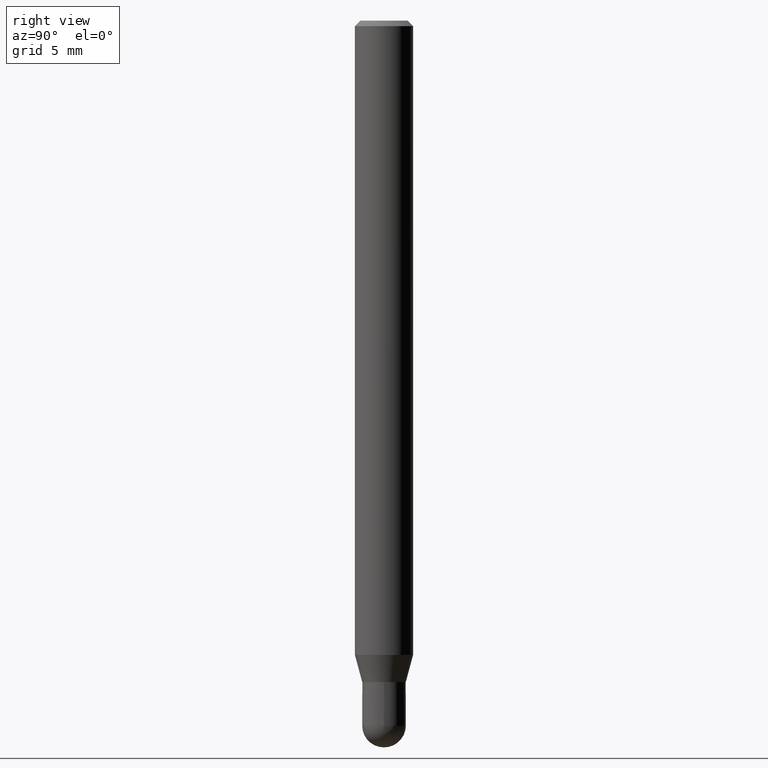
[diagram: clean part render]
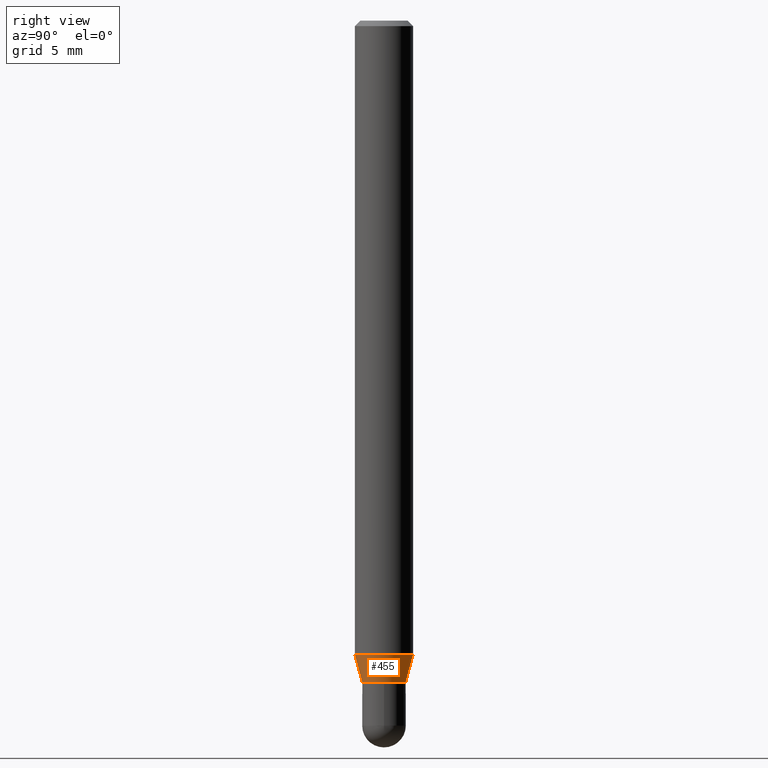
[diagram: same view with one face highlighted and labeled with its STEP entity id]
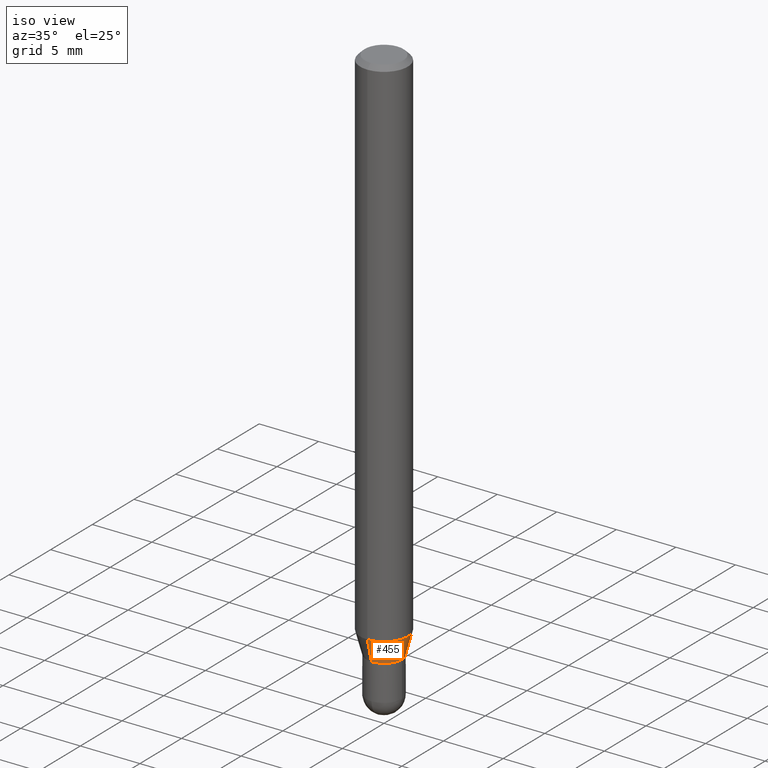
[diagram: same view with one face highlighted and labeled with its STEP entity id]
A machine part, right view. The second image highlights one B-rep face of the part: STEP entity #455.
A second angle (iso view) of the same face is appended — the face is thin or edge-on in the first view.
In plain terms, the highlighted conical surface has half-angle 15 deg.
Its self-contained STEP definition (entity closure, byte-faithful):
#4 = VERTEX_POINT ( 'NONE', #284 ) ;
#31 = AXIS2_PLACEMENT_3D ( 'NONE', #129, #277, #484 ) ;
#51 = CARTESIAN_POINT ( 'NONE',  ( 5.595524044111208086E-16, 0.07874999999999401923, -1.717978599090896230 ) ) ;
#70 = VECTOR ( 'NONE', #271, 39.37007874015748854 ) ;
#129 = CARTESIAN_POINT ( 'NONE',  ( 4.380515383996438847E-29, -6.255764968016230581E-15, -1.791499999999999648 ) ) ;
#137 = EDGE_CURVE ( 'NONE', #322, #505, #236, .T. ) ;
#144 = CIRCLE ( 'NONE', #269, 0.05905000000000020649 ) ;
#147 = CARTESIAN_POINT ( 'NONE',  ( -5.499083108677514374E-16, -0.07875000000000596800, -1.717978599090895564 ) ) ;
#151 = DIRECTION ( 'NONE',  ( -1.807323732225375499E-15, -0.2588190451025246808, 0.9659258262890673130 ) ) ;
#193 = ORIENTED_EDGE ( 'NONE', *, *, #137, .F. ) ;
#194 = DIRECTION ( 'NONE',  ( -2.445166276302785085E-29, 3.491914578853604397E-15, 1.000000000000000000 ) ) ;
#200 = DIRECTION ( 'NONE',  ( -2.445166276302785085E-29, 3.491914578853604397E-15, 1.000000000000000000 ) ) ;
#201 = VERTEX_POINT ( 'NONE', #290 ) ;
#220 = CARTESIAN_POINT ( 'NONE',  ( 4.380515383996438847E-29, -6.255764968016230581E-15, -1.791499999999999648 ) ) ;
#231 = CARTESIAN_POINT ( 'NONE',  ( 4.200743333906961214E-29, -5.999034516323990966E-15, -1.717978599090895786 ) ) ;
#235 = ORIENTED_EDGE ( 'NONE', *, *, #316, .T. ) ;
#236 = CIRCLE ( 'NONE', #429, 0.07875000000000000056 ) ;
#237 = VECTOR ( 'NONE', #151, 39.37007874015748854 ) ;
#259 = EDGE_CURVE ( 'NONE', #4, #505, #428, .T. ) ;
#263 = DIRECTION ( 'NONE',  ( -6.982962677686265922E-15, -1.000000000000000000, 4.626330217890353559E-15 ) ) ;
#269 = AXIS2_PLACEMENT_3D ( 'NONE', #220, #194, #263 ) ;
#271 = DIRECTION ( 'NONE',  ( 1.839019923739646069E-15, 0.2588190451025313976, 0.9659258262890653146 ) ) ;
#277 = DIRECTION ( 'NONE',  ( -2.445166276302785085E-29, 3.491914578853604397E-15, 1.000000000000000000 ) ) ;
#278 = EDGE_CURVE ( 'NONE', #201, #322, #466, .T. ) ;
#284 = CARTESIAN_POINT ( 'NONE',  ( 4.895639449387525347E-16, 0.05904999999999394761, -1.791500000000000092 ) ) ;
#290 = CARTESIAN_POINT ( 'NONE',  ( -4.123439461173316314E-16, -0.05905000000000645843, -1.791499999999999426 ) ) ;
#302 = CARTESIAN_POINT ( 'NONE',  ( 4.195754854663843594E-16, 0.05904999999999394761, -1.791500000000000092 ) ) ;
#316 = EDGE_CURVE ( 'NONE', #201, #4, #144, .T. ) ;
#322 = VERTEX_POINT ( 'NONE', #147 ) ;
#332 = CONICAL_SURFACE ( 'NONE', #31, 0.05905000000000020649, 0.2617993877991570129 ) ;
#356 = DIRECTION ( 'NONE',  ( -6.982962677686264344E-15, -1.000000000000000000, 3.469013325287953293E-15 ) ) ;
#362 = FACE_OUTER_BOUND ( 'NONE', #395, .T. ) ;
#395 = EDGE_LOOP ( 'NONE', ( #235, #485, #193, #497 ) ) ;
#428 = LINE ( 'NONE', #302, #70 ) ;
#429 = AXIS2_PLACEMENT_3D ( 'NONE', #231, #200, #356 ) ;
#455 = ADVANCED_FACE ( 'NONE', ( #362 ), #332, .T. ) ;
#466 = LINE ( 'NONE', #472, #237 ) ;
#472 = CARTESIAN_POINT ( 'NONE',  ( -4.123439461173316314E-16, -0.05905000000000645843, -1.791499999999999426 ) ) ;
#484 = DIRECTION ( 'NONE',  ( -6.982962677686265922E-15, -1.000000000000000000, 4.626330217890353559E-15 ) ) ;
#485 = ORIENTED_EDGE ( 'NONE', *, *, #259, .T. ) ;
#497 = ORIENTED_EDGE ( 'NONE', *, *, #278, .F. ) ;
#505 = VERTEX_POINT ( 'NONE', #51 ) ;